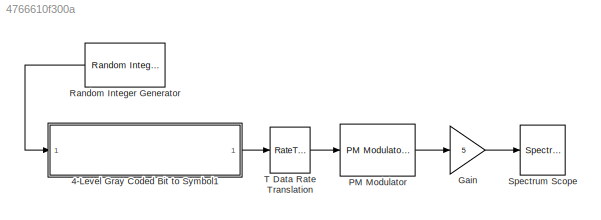
MODEL slx_4766610f300a
KIND model
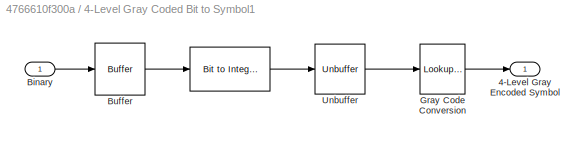
BLOCK [SubSystem] 4-Level Gray Coded Bit to Symbol1
  Ports = [1, 1]
  RequestExecContextInheritance = off
BLOCK [Reference] 4-Level Gray Coded Bit to Symbol1/   REF=commutil2/Bit to Integer
Converter
  Ports = [1, 1]
  SourceBlock = commutil2/Bit to Integer\nConverter
  SourceType = Bit to Integer Converter
  bitOrder = MSB first
  nbits = 2
  outDtype = Inherit via internal rule
  outDtypeSigned = Inherit via internal rule
  signedOutputValues = Unsigned
BLOCK [Outport] 4-Level Gray Coded Bit to Symbol1/4-Level Gray Encoded Symbol
  IconDisplay = Port number
BLOCK [Inport] 4-Level Gray Coded Bit to Symbol1/Binary
  IconDisplay = Port number
BLOCK [Buffer] 4-Level Gray Coded Bit to Symbol1/Buffer
  N = 2
  TreatMby1Signals = One channel
BLOCK [Lookup_n-D] 4-Level Gray Coded Bit to Symbol1/Gray Code Conversion
  BreakpointsForDimension1 = [0, 1, 2, 3]
  BreakpointsForDimension1DataTypeStr = double
  BreakpointsForDimension3 = [5, 7]
  IndexSearchMethod = Linear search
  InternalRulePriority = Speed
  NumberOfTableDimensions = 1
  OutDataTypeStr = double
  Ports = [1, 1]
  RndMeth = Simplest
  Table = [0, 1, 3, 2]
  TableDataTypeStr = double
BLOCK [Unbuffer] 4-Level Gray Coded Bit to Symbol1/Unbuffer
  Ports = [1, 1]
  SampleBasedProcessing = Same as frame based
BLOCK [Gain] Gain
  Gain = 5
  OutDataTypeStr = Inherit: Inherit via internal rule
  ParamDataTypeStr = Inherit: Inherit via internal rule
  SaturateOnIntegerOverflow = off
BLOCK [Reference] PM Modulator  REF=commanapbnd3/PM
Modulator
Passband
  Fc = 20000
  Kc = pi/2
  Ph = pi/4
  Ports = [1, 1]
  SourceBlock = commanapbnd3/PM\nModulator\nPassband
  SourceType = PM Modulator Passband
BLOCK [Reference] Random Integer Generator  REF=commrandsrc2/Random Integer
Generator
  Ports = [0, 1]
  SourceBlock = commrandsrc2/Random Integer\nGenerator
  SourceType = Random Integer Generator
  Ts = 1e-3
  frameBased = off
  mul = 2
  orient = off
  outDataType = double
  sampPerFrame = 1
  seed = randseed
BLOCK [SpectrumAnalyzer] Spectrum Scope
  Ports = [1]
  ScopeSpecificationString = spbscopes.SpectrumAnalyzerBlockCfg('CurrentConfiguration', extmgr.ConfigurationSet(extmgr.Configuration('Core','General UI',true,'FigureColor',[0.313725490196078 0.313725490196078 0.313725490196078]),extmgr.Configuration('Core','Source UI',true),extmgr.Configuration('Sources','WiredSimulink',true),extmgr.Configuration('Sources','Simulink',false),extmgr.Configuration('Sources','File',false),extmgr....<+7143ch>
BLOCK [RateTransition] T Data Rate Translation
  OutPortSampleTime = 2e-6
LINE 4-Level Gray Coded Bit to Symbol1/ :1 -> 4-Level Gray Coded Bit to Symbol1/Unbuffer:1
LINE 4-Level Gray Coded Bit to Symbol1/Binary:1 -> 4-Level Gray Coded Bit to Symbol1/Buffer:1
LINE 4-Level Gray Coded Bit to Symbol1/Buffer:1 -> 4-Level Gray Coded Bit to Symbol1/ :1
LINE 4-Level Gray Coded Bit to Symbol1/Gray Code Conversion:1 -> 4-Level Gray Coded Bit to Symbol1/4-Level Gray Encoded Symbol:1
LINE 4-Level Gray Coded Bit to Symbol1/Unbuffer:1 -> 4-Level Gray Coded Bit to Symbol1/Gray Code Conversion:1
LINE 4-Level Gray Coded Bit to Symbol1:1 -> T Data Rate Translation:1
LINE Gain:1 -> Spectrum Scope:1
LINE PM Modulator:1 -> Gain:1
LINE Random Integer Generator:1 -> 4-Level Gray Coded Bit to Symbol1:1
LINE T Data Rate Translation:1 -> PM Modulator:1
